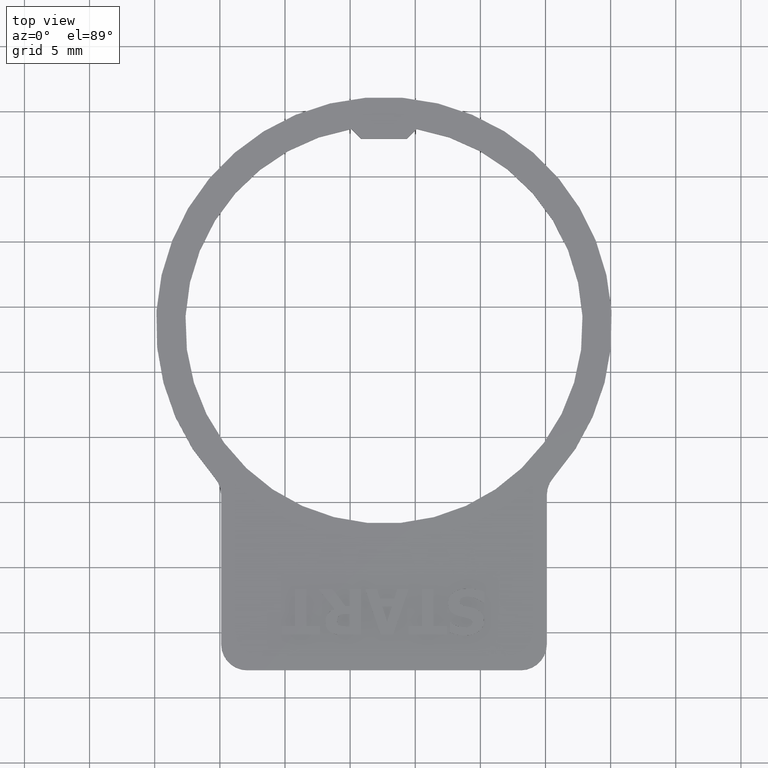
[diagram: clean part render]
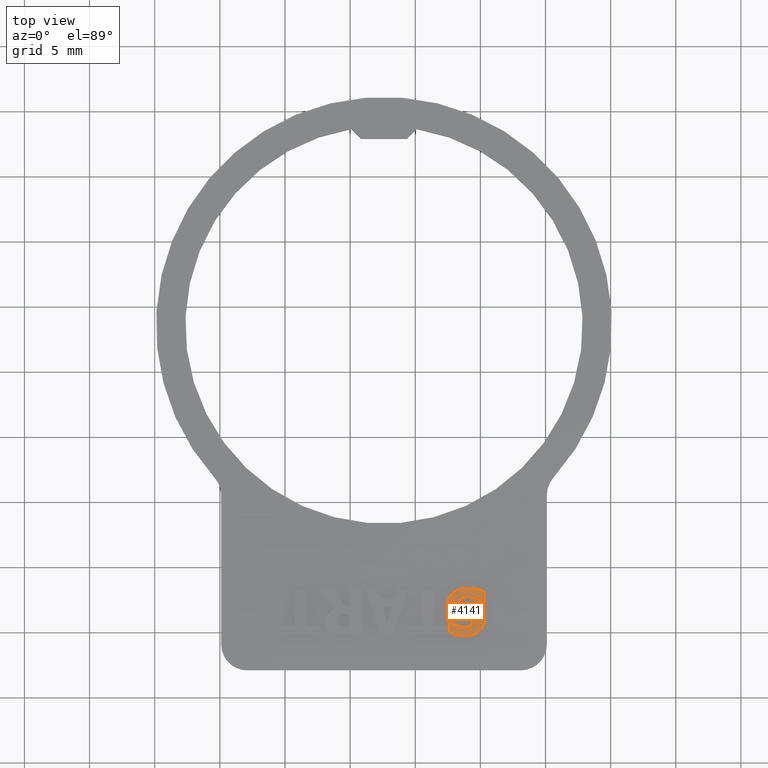
[diagram: same view with one face highlighted and labeled with its STEP entity id]
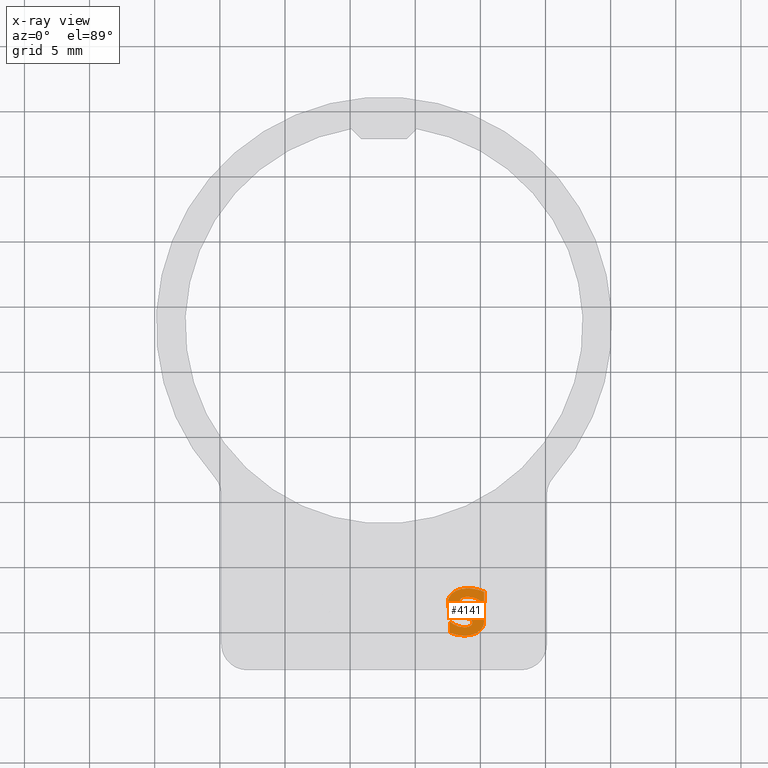
[diagram: x-ray of the same camera — body ghosted, the highlighted face saturated]
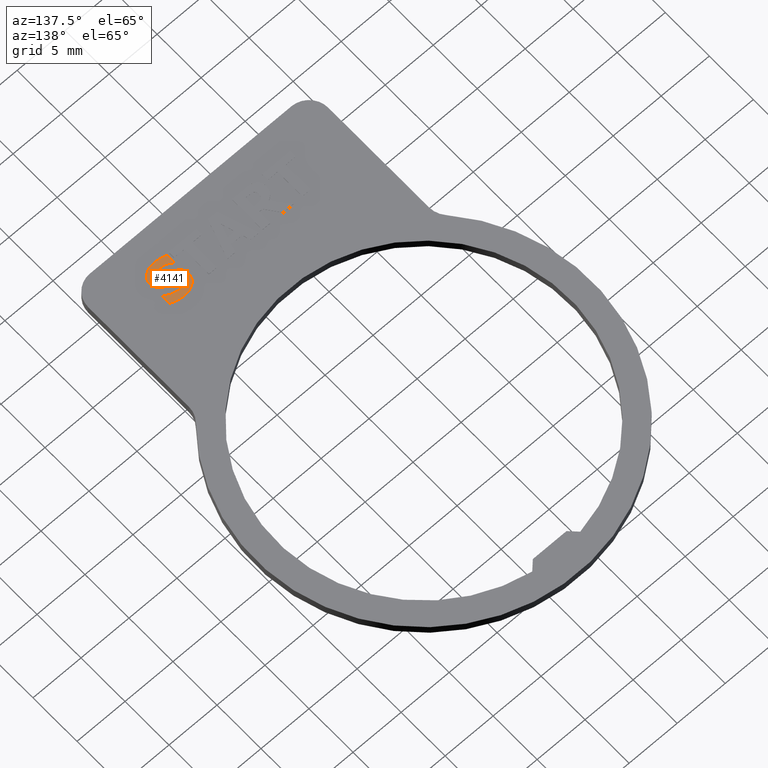
[diagram: same view with one face highlighted and labeled with its STEP entity id]
A machine part, top view. The second image highlights one B-rep face of the part: STEP entity #4141.
The next image is the same camera in x-ray: the body ghosted, the highlighted face saturated — about 0% of this face is hidden behind the body in this view.
A second angle (auxiliary view) of the same face is appended — the face is thin or edge-on in the first view.
In plain terms, the highlighted planar face has unit normal (0, 0, 1).
Its self-contained STEP definition (entity closure, byte-faithful):
#3888=CARTESIAN_POINT('',(-7.398424810307672,-2.851746310758943,1.010000000000000));
#3889=DIRECTION('',(0.0,0.0,1.0));
#3890=DIRECTION('',(1.0,0.0,0.0));
#3891=AXIS2_PLACEMENT_3D('',#3888,#3889,#3890);
#3892=PLANE('',#3891);
#3893=CARTESIAN_POINT('',(-0.974194208228235,-16.624981550110579,1.010000000000000));
#3894=VERTEX_POINT('',#3893);
#3895=CARTESIAN_POINT('',(-2.491617196973386,-17.782193848069497,1.010000000000000));
#3896=VERTEX_POINT('',#3895);
#3897=CARTESIAN_POINT('',(-0.974194208228235,-16.624981550110579,1.009999999999998));
#3898=CARTESIAN_POINT('',(-1.130778812454674,-16.624981550110579,1.009999999999998));
#3899=CARTESIAN_POINT('',(-1.289297199509878,-16.636980805931998,1.009999999999991));
#3900=CARTESIAN_POINT('',(-1.578527118713219,-16.693237039987011,1.009999999999991));
#3901=CARTESIAN_POINT('',(-1.711117897249476,-16.733646804553750,1.009999999999991));
#3902=CARTESIAN_POINT('',(-2.010874784526853,-16.875206980021350,1.009999999999991));
#3903=CARTESIAN_POINT('',(-2.128609976813072,-16.973791483017120,1.009999999999991));
#3904=CARTESIAN_POINT('',(-2.294528066355147,-17.143990562376750,1.009999999999991));
#3905=CARTESIAN_POINT('',(-2.364921299318687,-17.247851366186964,1.010000000000000));
#3906=CARTESIAN_POINT('',(-2.468392022747815,-17.498296286294654,1.010000000000000));
#3907=CARTESIAN_POINT('',(-2.491617196973386,-17.638740992844145,1.009999999999997));
#3908=CARTESIAN_POINT('',(-2.491617196973386,-17.782193848069493,1.009999999999997));
#3909=B_SPLINE_CURVE_WITH_KNOTS('',3,(#3897,#3898,#3899,#3900,#3901,#3902,#3903,#3904,#3905,#3906,#3907,#3908),.UNSPECIFIED.,.F.,.U.,(4,2,2,2,2,4),(-0.164680628963435,-0.137918794284522,-0.114335364423110,-0.081283981251059,-0.043035856567605,0.0),.UNSPECIFIED.);
#3910=EDGE_CURVE('',#3894,#3896,#3909,.T.);
#3911=ORIENTED_EDGE('',*,*,#3910,.T.);
#3912=CARTESIAN_POINT('',(-1.774032120052782,-18.721010687835186,1.010000000000000));
#3913=VERTEX_POINT('',#3912);
#3914=CARTESIAN_POINT('',(-2.491617196973386,-17.782193848069497,1.009999999999998));
#3915=CARTESIAN_POINT('',(-2.491617196973386,-17.864553422276636,1.009999999999998));
#3916=CARTESIAN_POINT('',(-2.484774983031589,-17.947590384702078,1.010000000000009));
#3917=CARTESIAN_POINT('',(-2.453015675248276,-18.100446049301421,1.010000000000009));
#3918=CARTESIAN_POINT('',(-2.430113444718404,-18.170530036497212,1.010000000000000));
#3919=CARTESIAN_POINT('',(-2.366486245362325,-18.298196125023182,1.010000000000000));
#3920=CARTESIAN_POINT('',(-2.311727334094959,-18.387060947943290,1.010000000000000));
#3921=CARTESIAN_POINT('',(-2.080623074679691,-18.587436750738373,1.010000000000000));
#3922=CARTESIAN_POINT('',(-1.927762096950847,-18.664562961942931,1.009999999999998));
#3923=CARTESIAN_POINT('',(-1.774032120052782,-18.721010687835189,1.009999999999998));
#3924=B_SPLINE_CURVE_WITH_KNOTS('',3,(#3914,#3915,#3916,#3917,#3918,#3919,#3920,#3921,#3922,#3923),.UNSPECIFIED.,.F.,.U.,(4,2,2,2,4),(-0.187967043254968,-0.137138320788927,-0.091636560866390,-0.049129753103326,0.0),.UNSPECIFIED.);
#3925=EDGE_CURVE('',#3896,#3913,#3924,.T.);
#3926=ORIENTED_EDGE('',*,*,#3925,.T.);
#3927=CARTESIAN_POINT('',(-1.084810089650779,-18.902534185554234,1.010000000000000));
#3928=VERTEX_POINT('',#3927);
#3929=CARTESIAN_POINT('',(-1.774032120052782,-18.721010687835189,1.009999999999998));
#3930=CARTESIAN_POINT('',(-1.606546260429173,-18.779376972249477,1.009999999999998));
#3931=CARTESIAN_POINT('',(-1.536728003129666,-18.797293401647426,1.009999999999998));
#3932=CARTESIAN_POINT('',(-1.441122125190392,-18.820396865107167,1.009999999999998));
#3933=CARTESIAN_POINT('',(-1.435434728718572,-18.821771242492741,1.009999999999998));
#3934=CARTESIAN_POINT('',(-1.429652605423773,-18.823149625309437,1.009999999999998));
#3935=CARTESIAN_POINT('',(-1.423748495548060,-18.824535807628081,1.009999999999998));
#3936=CARTESIAN_POINT('',(-1.311072483673015,-18.850990175633530,1.009999999999999));
#3937=CARTESIAN_POINT('',(-1.197703452075808,-18.877042135974389,1.009999999999999));
#3938=CARTESIAN_POINT('',(-1.084810089650779,-18.902534185554238,1.009999999999999));
#3939=B_SPLINE_CURVE_WITH_KNOTS('',3,(#3929,#3930,#3931,#3932,#3933,#3934,#3935,#3936,#3937,#3938),.UNSPECIFIED.,.F.,.U.,(4,3,3,4),(-0.067123230143747,-0.036540045271664,-0.034720714687732,0.0),.UNSPECIFIED.);
#3940=EDGE_CURVE('',#3913,#3928,#3939,.T.);
#3941=ORIENTED_EDGE('',*,*,#3940,.T.);
#3942=CARTESIAN_POINT('',(-0.622492431397584,-19.257072267036747,1.010000000000000));
#3943=VERTEX_POINT('',#3942);
#3944=CARTESIAN_POINT('',(-1.084810089650779,-18.902534185554238,1.009999999999998));
#3945=CARTESIAN_POINT('',(-0.982310803536437,-18.926023605288773,1.009999999999998));
#3946=CARTESIAN_POINT('',(-0.874753891446896,-18.956572030839133,1.009999999999982));
#3947=CARTESIAN_POINT('',(-0.746528048729898,-19.018869042358698,1.009999999999982));
#3948=CARTESIAN_POINT('',(-0.717927824063865,-19.040448784932970,1.009999999999991));
#3949=CARTESIAN_POINT('',(-0.673614489385235,-19.085130417581215,1.009999999999991));
#3950=CARTESIAN_POINT('',(-0.655691236140065,-19.111992942018375,1.010000000000000));
#3951=CARTESIAN_POINT('',(-0.628426024257704,-19.178868006856028,1.010000000000000));
#3952=CARTESIAN_POINT('',(-0.622492431397584,-19.217787560567153,1.009999999999998));
#3953=CARTESIAN_POINT('',(-0.622492431397584,-19.257072267036747,1.009999999999998));
#3954=B_SPLINE_CURVE_WITH_KNOTS('',3,(#3944,#3945,#3946,#3947,#3948,#3949,#3950,#3951,#3952,#3953),.UNSPECIFIED.,.F.,.U.,(4,2,2,2,4),(-0.045792106775778,-0.030659052923253,-0.021659892603241,-0.011785411940878,0.0),.UNSPECIFIED.);
#3955=EDGE_CURVE('',#3928,#3943,#3954,.T.);
#3956=ORIENTED_EDGE('',*,*,#3955,.T.);
#3957=CARTESIAN_POINT('',(-0.823870061679651,-19.532193818267174,1.010000000000000));
#3958=VERTEX_POINT('',#3957);
#3959=CARTESIAN_POINT('',(-0.622492431397584,-19.257072267036747,1.009999999999998));
#3960=CARTESIAN_POINT('',(-0.622492431397584,-19.274630268624907,1.009999999999998));
#3961=CARTESIAN_POINT('',(-0.624164206650646,-19.292040240887850,1.009999999999973));
#3962=CARTESIAN_POINT('',(-0.631175627471351,-19.326183633503785,1.009999999999973));
#3963=CARTESIAN_POINT('',(-0.636389744683521,-19.342578606198089,1.009999999999982));
#3964=CARTESIAN_POINT('',(-0.649331451655071,-19.372240792291876,1.009999999999982));
#3965=CARTESIAN_POINT('',(-0.665699679269465,-19.406388392483130,1.010000000000000));
#3966=CARTESIAN_POINT('',(-0.738806531270870,-19.483309206120328,1.010000000000000));
#3967=CARTESIAN_POINT('',(-0.778462489486500,-19.511838699697833,1.009999999999998));
#3968=CARTESIAN_POINT('',(-0.823870061679651,-19.532193818267174,1.009999999999998));
#3969=B_SPLINE_CURVE_WITH_KNOTS('',3,(#3959,#3960,#3961,#3962,#3963,#3964,#3965,#3966,#3967,#3968),.UNSPECIFIED.,.F.,.U.,(4,2,2,2,4),(-0.070955855094271,-0.051249861586351,-0.031836004811477,-0.014928364337741,0.0),.UNSPECIFIED.);
#3970=EDGE_CURVE('',#3943,#3958,#3969,.T.);
#3971=ORIENTED_EDGE('',*,*,#3970,.T.);
#3972=CARTESIAN_POINT('',(-1.223789017591924,-19.611610348519260,1.010000000000000));
#3973=VERTEX_POINT('',#3972);
#3974=CARTESIAN_POINT('',(-0.823870061679651,-19.532193818267174,1.009999999999998));
#3975=CARTESIAN_POINT('',(-0.916982918116388,-19.573577310016837,1.009999999999998));
#3976=CARTESIAN_POINT('',(-0.982581610908632,-19.588188051777315,1.009999999999991));
#3977=CARTESIAN_POINT('',(-1.083986972779523,-19.607201557128107,1.009999999999991));
#3978=CARTESIAN_POINT('',(-1.155442905666489,-19.611610348519260,1.009999999999998));
#3979=CARTESIAN_POINT('',(-1.223789017591924,-19.611610348519260,1.009999999999998));
#3980=B_SPLINE_CURVE_WITH_KNOTS('',3,(#3974,#3975,#3976,#3977,#3978,#3979),.UNSPECIFIED.,.F.,.U.,(4,2,4),(-0.030918282203510,-0.020503833577630,0.0),.UNSPECIFIED.);
#3981=EDGE_CURVE('',#3958,#3973,#3980,.T.);
#3982=ORIENTED_EDGE('',*,*,#3981,.T.);
#3983=CARTESIAN_POINT('',(-2.276058043432018,-19.214527697258845,1.010000000000000));
#3984=VERTEX_POINT('',#3983);
#3985=CARTESIAN_POINT('',(-1.223789017591924,-19.611610348519260,1.009999999999998));
#3986=CARTESIAN_POINT('',(-1.500141626648599,-19.611610348519260,1.009999999999998));
#3987=CARTESIAN_POINT('',(-1.703603838704037,-19.535994337797987,1.009999999999991));
#3988=CARTESIAN_POINT('',(-1.971103343495376,-19.426562722201531,1.009999999999991));
#3989=CARTESIAN_POINT('',(-2.135135363997549,-19.335026799963678,1.009999999999999));
#3990=CARTESIAN_POINT('',(-2.276058043432019,-19.214527697258841,1.009999999999999));
#3991=B_SPLINE_CURVE_WITH_KNOTS('',3,(#3985,#3986,#3987,#3988,#3989,#3990),.UNSPECIFIED.,.F.,.U.,(4,2,4),(-0.086739235832848,-0.055624915099706,0.0),.UNSPECIFIED.);
#3992=EDGE_CURVE('',#3973,#3984,#3991,.T.);
#3993=ORIENTED_EDGE('',*,*,#3992,.T.);
#3994=CARTESIAN_POINT('',(-2.352638269032241,-19.214527697258845,1.010000000000000));
#3995=VERTEX_POINT('',#3994);
#3996=CARTESIAN_POINT('',(-2.276058043432018,-19.214527697258845,1.010000000000000));
#3997=DIRECTION('',(-1.0,0.0,0.0));
#3998=VECTOR('',#3997,0.076580225600223);
#3999=LINE('',#3996,#3998);
#4000=EDGE_CURVE('',#3984,#3995,#3999,.T.);
#4001=ORIENTED_EDGE('',*,*,#4000,.T.);
#4002=CARTESIAN_POINT('',(-2.352638269032241,-20.014365609083391,1.010000000000000));
#4003=VERTEX_POINT('',#4002);
#4004=CARTESIAN_POINT('',(-2.352638269032241,-19.214527697258845,1.010000000000000));
#4005=DIRECTION('',(0.0,-1.0,0.0));
#4006=VECTOR('',#4005,0.799837911824547);
#4007=LINE('',#4004,#4006);
#4008=EDGE_CURVE('',#3995,#4003,#4007,.T.);
#4009=ORIENTED_EDGE('',*,*,#4008,.T.);
#4010=CARTESIAN_POINT('',(-1.178408143162162,-20.249778895187781,1.010000000000000));
#4011=VERTEX_POINT('',#4010);
#4012=CARTESIAN_POINT('',(-2.352638269032240,-20.014365609083391,1.009999999999998));
#4013=CARTESIAN_POINT('',(-2.170441239668366,-20.094871273220917,1.009999999999998));
#4014=CARTESIAN_POINT('',(-1.978561891459282,-20.149011873872816,1.009999999999991));
#4015=CARTESIAN_POINT('',(-1.594664747774173,-20.228256697110567,1.009999999999991));
#4016=CARTESIAN_POINT('',(-1.387622026929344,-20.249778895187781,1.009999999999999));
#4017=CARTESIAN_POINT('',(-1.178408143162163,-20.249778895187781,1.009999999999999));
#4018=B_SPLINE_CURVE_WITH_KNOTS('',3,(#4012,#4013,#4014,#4015,#4016,#4017),.UNSPECIFIED.,.F.,.U.,(4,2,4),(-0.117597246849922,-0.062764165130154,0.0),.UNSPECIFIED.);
#4019=EDGE_CURVE('',#4003,#4011,#4018,.T.);
#4020=ORIENTED_EDGE('',*,*,#4019,.T.);
#4021=CARTESIAN_POINT('',(0.276616143242066,-19.149292690266066,1.010000000000000));
#4022=VERTEX_POINT('',#4021);
#4023=CARTESIAN_POINT('',(-1.178408143162162,-20.249778895187781,1.009999999999998));
#4024=CARTESIAN_POINT('',(-1.027669025332509,-20.249778895187781,1.009999999999998));
#4025=CARTESIAN_POINT('',(-0.876463324949998,-20.236433746178815,1.010000000000009));
#4026=CARTESIAN_POINT('',(-0.594414039032865,-20.175583607222229,1.010000000000009));
#4027=CARTESIAN_POINT('',(-0.464438701731242,-20.131445268788145,1.010000000000009));
#4028=CARTESIAN_POINT('',(-0.222889854750472,-20.009186167351412,1.010000000000009));
#4029=CARTESIAN_POINT('',(-0.094175545394080,-19.924005400284670,1.010000000000009));
#4030=CARTESIAN_POINT('',(0.094820627617900,-19.728420543384484,1.010000000000009));
#4031=CARTESIAN_POINT('',(0.160386723427655,-19.632214266502640,1.009999999999991));
#4032=CARTESIAN_POINT('',(0.255077019064477,-19.404006399649059,1.009999999999991));
#4033=CARTESIAN_POINT('',(0.276616143242066,-19.278291920194587,1.009999999999999));
#4034=CARTESIAN_POINT('',(0.276616143242066,-19.149292690266066,1.009999999999999));
#4035=B_SPLINE_CURVE_WITH_KNOTS('',3,(#4023,#4024,#4025,#4026,#4027,#4028,#4029,#4030,#4031,#4032,#4033,#4034),.UNSPECIFIED.,.F.,.U.,(4,2,2,2,2,4),(-0.220505654195739,-0.168143574801602,-0.120289914823640,-0.074116909885989,-0.038699768978556,0.0),.UNSPECIFIED.);
#4036=EDGE_CURVE('',#4011,#4022,#4035,.T.);
#4037=ORIENTED_EDGE('',*,*,#4036,.T.);
#4038=CARTESIAN_POINT('',(-0.480677198804579,-18.159422366766890,1.010000000000000));
#4039=VERTEX_POINT('',#4038);
#4040=CARTESIAN_POINT('',(0.276616143242066,-19.149292690266066,1.009999999999998));
#4041=CARTESIAN_POINT('',(0.276616143242066,-19.057800611783488,1.009999999999998));
#4042=CARTESIAN_POINT('',(0.268239941592890,-18.966012869196248,1.009999999999991));
#4043=CARTESIAN_POINT('',(0.229843794325875,-18.795259469868427,1.009999999999991));
#4044=CARTESIAN_POINT('',(0.202016891883674,-18.716924774355412,1.010000000000000));
#4045=CARTESIAN_POINT('',(0.100620614993740,-18.526215339800402,1.010000000000000));
#4046=CARTESIAN_POINT('',(0.023792831212728,-18.446971791134295,1.009999999999991));
#4047=CARTESIAN_POINT('',(-0.172704171030286,-18.286466485524155,1.009999999999991));
#4048=CARTESIAN_POINT('',(-0.327510504364900,-18.212977155032512,1.009999999999998));
#4049=CARTESIAN_POINT('',(-0.480677198804580,-18.159422366766890,1.009999999999998));
#4050=B_SPLINE_CURVE_WITH_KNOTS('',3,(#4040,#4041,#4042,#4043,#4044,#4045,#4046,#4047,#4048,#4049),.UNSPECIFIED.,.F.,.U.,(4,2,2,2,4),(-0.112065726577337,-0.093202093516863,-0.075986489287067,-0.048677855816150,0.0),.UNSPECIFIED.);
#4051=EDGE_CURVE('',#4022,#4039,#4050,.T.);
#4052=ORIENTED_EDGE('',*,*,#4051,.T.);
#4053=CARTESIAN_POINT('',(-1.243643150154944,-17.966553650440403,1.010000000000000));
#4054=VERTEX_POINT('',#4053);
#4055=CARTESIAN_POINT('',(-0.480677198804579,-18.159422366766890,1.009999999999998));
#4056=CARTESIAN_POINT('',(-0.662665561844178,-18.095870874911792,1.009999999999998));
#4057=CARTESIAN_POINT('',(-0.814392731718490,-18.065584350750758,1.009999999999991));
#4058=CARTESIAN_POINT('',(-0.989712650175729,-18.030029961692996,1.009999999999991));
#4059=CARTESIAN_POINT('',(-1.117972894514030,-18.000464671803826,1.010000000000001));
#4060=CARTESIAN_POINT('',(-1.243643150154945,-17.966553650440403,1.010000000000001));
#4061=B_SPLINE_CURVE_WITH_KNOTS('',3,(#4055,#4056,#4057,#4058,#4059,#4060),.UNSPECIFIED.,.F.,.U.,(4,2,4),(-0.053673312620026,-0.039049549895597,0.0),.UNSPECIFIED.);
#4062=EDGE_CURVE('',#4039,#4054,#4061,.T.);
#4063=ORIENTED_EDGE('',*,*,#4062,.T.);
#4064=CARTESIAN_POINT('',(-1.592508622333736,-17.631869701520916,1.010000000000000));
#4065=VERTEX_POINT('',#4064);
#4066=CARTESIAN_POINT('',(-1.243643150154943,-17.966553650440400,1.009999999999998));
#4067=CARTESIAN_POINT('',(-1.307417890585103,-17.949972217928558,1.009999999999998));
#4068=CARTESIAN_POINT('',(-1.368507107448883,-17.925695909008976,1.009999999999991));
#4069=CARTESIAN_POINT('',(-1.444096643460669,-17.880277074457606,1.009999999999991));
#4070=CARTESIAN_POINT('',(-1.484941074754668,-17.855250279826411,1.009999999999991));
#4071=CARTESIAN_POINT('',(-1.541312755277918,-17.797374914319683,1.009999999999991));
#4072=CARTESIAN_POINT('',(-1.559615241064583,-17.770386784115765,1.010000000000000));
#4073=CARTESIAN_POINT('',(-1.586472138998590,-17.705412130136772,1.010000000000000));
#4074=CARTESIAN_POINT('',(-1.592508622333736,-17.669039416906710,1.009999999999998));
#4075=CARTESIAN_POINT('',(-1.592508622333736,-17.631869701520912,1.009999999999998));
#4076=B_SPLINE_CURVE_WITH_KNOTS('',3,(#4066,#4067,#4068,#4069,#4070,#4071,#4072,#4073,#4074,#4075),.UNSPECIFIED.,.F.,.U.,(4,2,2,2,4),(-0.077660786540428,-0.035386076901195,-0.021089641007687,-0.011150914615740,0.0),.UNSPECIFIED.);
#4077=EDGE_CURVE('',#4054,#4065,#4076,.T.);
#4078=ORIENTED_EDGE('',*,*,#4077,.T.);
#4079=CARTESIAN_POINT('',(-1.374113164140509,-17.331221408423747,1.010000000000000));
#4080=VERTEX_POINT('',#4079);
#4081=CARTESIAN_POINT('',(-1.592508622333736,-17.631869701520912,1.009999999999998));
#4082=CARTESIAN_POINT('',(-1.592508622333736,-17.592598516298487,1.009999999999998));
#4083=CARTESIAN_POINT('',(-1.587050148809363,-17.553303660325746,1.009999999999991));
#4084=CARTESIAN_POINT('',(-1.558049018483459,-17.477785400924194,1.009999999999991));
#4085=CARTESIAN_POINT('',(-1.537234359784874,-17.451700251545390,1.009999999999991));
#4086=CARTESIAN_POINT('',(-1.476094181903958,-17.387687279268057,1.009999999999991));
#4087=CARTESIAN_POINT('',(-1.428250387658635,-17.354906443712924,1.009999999999998));
#4088=CARTESIAN_POINT('',(-1.374113164140508,-17.331221408423744,1.009999999999998));
#4089=B_SPLINE_CURVE_WITH_KNOTS('',3,(#4081,#4082,#4083,#4084,#4085,#4086,#4087,#4088),.UNSPECIFIED.,.F.,.U.,(4,2,2,4),(-0.034891798082772,-0.026555903902675,-0.017727486793709,0.0),.UNSPECIFIED.);
#4090=EDGE_CURVE('',#4065,#4080,#4089,.T.);
#4091=ORIENTED_EDGE('',*,*,#4090,.T.);
#4092=CARTESIAN_POINT('',(-0.977030512880095,-17.263150096779100,1.010000000000000));
#4093=VERTEX_POINT('',#4092);
#4094=CARTESIAN_POINT('',(-1.374113164140508,-17.331221408423744,1.009999999999998));
#4095=CARTESIAN_POINT('',(-1.302273117026059,-17.298064463601690,1.009999999999998));
#4096=CARTESIAN_POINT('',(-1.212560164629361,-17.285074155558281,1.009999999999991));
#4097=CARTESIAN_POINT('',(-1.115800095387992,-17.271727939111194,1.009999999999991));
#4098=CARTESIAN_POINT('',(-1.039483637201869,-17.263150096779100,1.009999999999998));
#4099=CARTESIAN_POINT('',(-0.977030512880095,-17.263150096779100,1.009999999999998));
#4100=B_SPLINE_CURVE_WITH_KNOTS('',3,(#4094,#4095,#4096,#4097,#4098,#4099),.UNSPECIFIED.,.F.,.U.,(4,2,4),(-0.029627286937398,-0.018735937296532,0.0),.UNSPECIFIED.);
#4101=EDGE_CURVE('',#4080,#4093,#4100,.T.);
#4102=ORIENTED_EDGE('',*,*,#4101,.T.);
#4103=CARTESIAN_POINT('',(0.217053745553004,-17.728304059684156,1.010000000000000));
#4104=VERTEX_POINT('',#4103);
#4105=CARTESIAN_POINT('',(-0.977030512880095,-17.263150096779100,1.009999999999998));
#4106=CARTESIAN_POINT('',(-0.734896176998464,-17.263150096779100,1.009999999999998));
#4107=CARTESIAN_POINT('',(-0.521835208006888,-17.323139253265069,1.009999999999991));
#4108=CARTESIAN_POINT('',(-0.149787099938261,-17.464951312394369,1.009999999999991));
#4109=CARTESIAN_POINT('',(0.043175239846292,-17.580600812901036,1.010000000000001));
#4110=CARTESIAN_POINT('',(0.217053745553004,-17.728304059684156,1.010000000000001));
#4111=B_SPLINE_CURVE_WITH_KNOTS('',3,(#4105,#4106,#4107,#4108,#4109,#4110),.UNSPECIFIED.,.F.,.U.,(4,2,4),(-0.119447525334529,-0.068443396665688,0.0),.UNSPECIFIED.);
#4112=EDGE_CURVE('',#4093,#4104,#4111,.T.);
#4113=ORIENTED_EDGE('',*,*,#4112,.T.);
#4114=CARTESIAN_POINT('',(0.296470275805087,-17.728304059684156,1.010000000000000));
#4115=VERTEX_POINT('',#4114);
#4116=CARTESIAN_POINT('',(0.217053745553004,-17.728304059684156,1.010000000000000));
#4117=DIRECTION('',(1.0,0.0,0.0));
#4118=VECTOR('',#4117,0.079416530252083);
#4119=LINE('',#4116,#4118);
#4120=EDGE_CURVE('',#4104,#4115,#4119,.T.);
#4121=ORIENTED_EDGE('',*,*,#4120,.T.);
#4122=CARTESIAN_POINT('',(0.296470275805087,-16.894430492037287,1.010000000000000));
#4123=VERTEX_POINT('',#4122);
#4124=CARTESIAN_POINT('',(0.296470275805087,-17.728304059684156,1.010000000000000));
#4125=DIRECTION('',(0.0,1.0,0.0));
#4126=VECTOR('',#4125,0.833873567646869);
#4127=LINE('',#4124,#4126);
#4128=EDGE_CURVE('',#4115,#4123,#4127,.T.);
#4129=ORIENTED_EDGE('',*,*,#4128,.T.);
#4130=CARTESIAN_POINT('',(0.296470275805087,-16.894430492037287,1.009999999999998));
#4131=CARTESIAN_POINT('',(0.023789196448402,-16.775873501012644,1.009999999999998));
#4132=CARTESIAN_POINT('',(-0.210120971321988,-16.717843646834019,1.009999999999991));
#4133=CARTESIAN_POINT('',(-0.494727064620018,-16.644697220986394,1.009999999999991));
#4134=CARTESIAN_POINT('',(-0.740378554053222,-16.624981550110579,1.009999999999997));
#4135=CARTESIAN_POINT('',(-0.974194208228235,-16.624981550110579,1.009999999999997));
#4136=B_SPLINE_CURVE_WITH_KNOTS('',3,(#4130,#4131,#4132,#4133,#4134,#4135),.UNSPECIFIED.,.F.,.U.,(4,2,4),(-0.088033553736731,-0.070144696252504,0.0),.UNSPECIFIED.);
#4137=EDGE_CURVE('',#4123,#3894,#4136,.T.);
#4138=ORIENTED_EDGE('',*,*,#4137,.T.);
#4139=EDGE_LOOP('',(#3911,#3926,#3941,#3956,#3971,#3982,#3993,#4001,#4009,#4020,#4037,#4052,#4063,#4078,#4091,#4102,#4113,#4121,#4129,#4138));
#4140=FACE_OUTER_BOUND('',#4139,.T.);
#4141=ADVANCED_FACE('',(#4140),#3892,.T.);